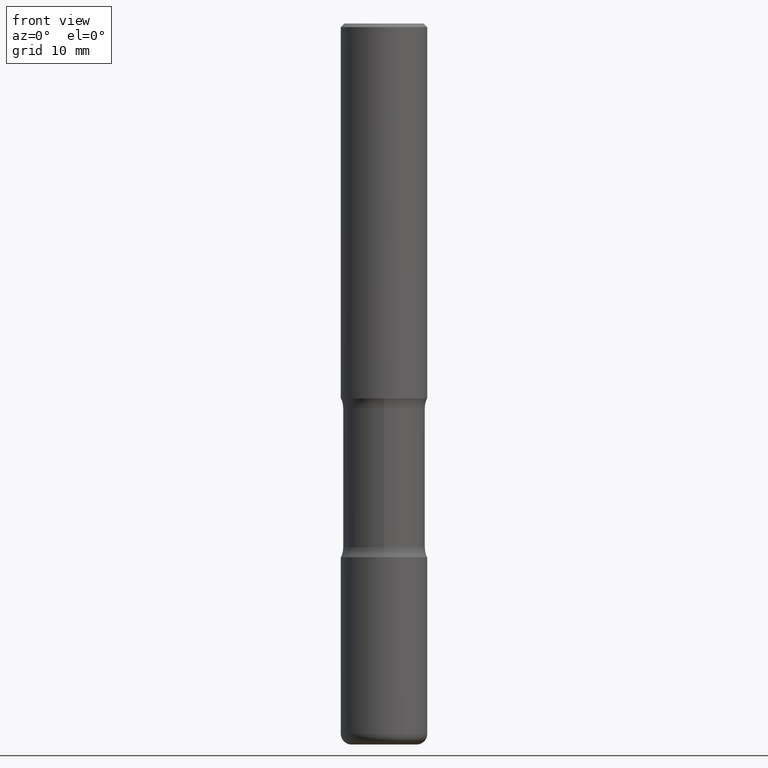
[diagram: clean part render]
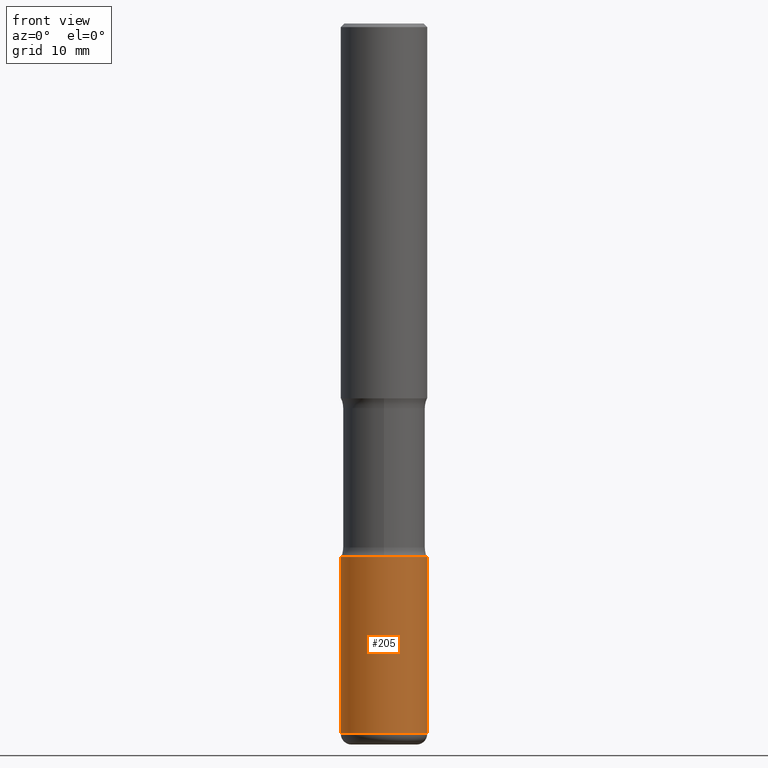
[diagram: same view with one face highlighted and labeled with its STEP entity id]
A machine part, front view. The second image highlights one B-rep face of the part: STEP entity #205.
In plain terms, the highlighted cylindrical surface (partial cylindrical patch) has radius 5.9995 mm, axis along (-0, 0, 1).
Its self-contained STEP definition (entity closure, byte-faithful):
#6 = CARTESIAN_POINT ( 'NONE',  ( 9.483283483505337853E-29, -1.353961548389983144E-14, -3.877899999999999014 ) ) ;
#40 = EDGE_CURVE ( 'NONE', #238, #203, #289, .T. ) ;
#51 = DIRECTION ( 'NONE',  ( -2.445468806185136597E-29, 3.491481338843145583E-15, 1.000000000000000000 ) ) ;
#60 = VECTOR ( 'NONE', #499, 39.37007874015748143 ) ;
#148 = AXIS2_PLACEMENT_3D ( 'NONE', #339, #550, #514 ) ;
#154 = VERTEX_POINT ( 'NONE', #295 ) ;
#162 = ORIENTED_EDGE ( 'NONE', *, *, #330, .T. ) ;
#168 = EDGE_CURVE ( 'NONE', #384, #203, #420, .T. ) ;
#178 = CYLINDRICAL_SURFACE ( 'NONE', #148, 0.2362000000000001598 ) ;
#188 = DIRECTION ( 'NONE',  ( 1.000000000000000000, -6.982962677686266711E-15, 0.000000000000000000 ) ) ;
#200 = CIRCLE ( 'NONE', #504, 0.2362000000000002153 ) ;
#203 = VERTEX_POINT ( 'NONE', #417 ) ;
#205 = ADVANCED_FACE ( 'NONE', ( #378 ), #178, .T. ) ;
#209 = DIRECTION ( 'NONE',  ( -2.445468806185136597E-29, 3.491481338843145583E-15, 1.000000000000000000 ) ) ;
#212 = AXIS2_PLACEMENT_3D ( 'NONE', #217, #209, #470 ) ;
#217 = CARTESIAN_POINT ( 'NONE',  ( 7.124628819939777829E-29, -1.017208173258562247E-14, -2.913400000000000212 ) ) ;
#221 = CARTESIAN_POINT ( 'NONE',  ( -0.2362000000000001598, 1.678301941865357775E-15, -1.161852468318209598E-29 ) ) ;
#238 = VERTEX_POINT ( 'NONE', #375 ) ;
#276 = VECTOR ( 'NONE', #385, 39.37007874015748143 ) ;
#289 = LINE ( 'NONE', #296, #60 ) ;
#295 = CARTESIAN_POINT ( 'NONE',  ( -0.2362000000000000766, -1.186131354203447347E-14, -3.877899999999999014 ) ) ;
#296 = CARTESIAN_POINT ( 'NONE',  ( 0.2362000000000001598, -1.649375784469497314E-15, 1.151752954443000929E-29 ) ) ;
#306 = EDGE_CURVE ( 'NONE', #154, #384, #388, .T. ) ;
#330 = EDGE_CURVE ( 'NONE', #154, #238, #200, .T. ) ;
#339 = CARTESIAN_POINT ( 'NONE',  ( 0.000000000000000000, 0.000000000000000000, 0.000000000000000000 ) ) ;
#347 = ORIENTED_EDGE ( 'NONE', *, *, #306, .F. ) ;
#353 = CARTESIAN_POINT ( 'NONE',  ( -0.2362000000000001321, -1.017754666637736977E-14, -2.913400000000000212 ) ) ;
#363 = EDGE_LOOP ( 'NONE', ( #347, #162, #398, #489 ) ) ;
#375 = CARTESIAN_POINT ( 'NONE',  ( 0.2362000000000000766, -1.518899126836932954E-14, -3.877899999999999014 ) ) ;
#378 = FACE_OUTER_BOUND ( 'NONE', #363, .T. ) ;
#384 = VERTEX_POINT ( 'NONE', #353 ) ;
#385 = DIRECTION ( 'NONE',  ( -2.445468806185136877E-29, 3.491481338843145188E-15, 1.000000000000000000 ) ) ;
#388 = LINE ( 'NONE', #221, #276 ) ;
#398 = ORIENTED_EDGE ( 'NONE', *, *, #40, .T. ) ;
#417 = CARTESIAN_POINT ( 'NONE',  ( 0.2362000000000001321, -1.182145751705511899E-14, -2.913400000000000212 ) ) ;
#420 = CIRCLE ( 'NONE', #212, 0.2362000000000001321 ) ;
#470 = DIRECTION ( 'NONE',  ( 1.000000000000000000, -6.982962677686269077E-15, 0.000000000000000000 ) ) ;
#489 = ORIENTED_EDGE ( 'NONE', *, *, #168, .F. ) ;
#499 = DIRECTION ( 'NONE',  ( -2.445468806185136877E-29, 3.491481338843145188E-15, 1.000000000000000000 ) ) ;
#504 = AXIS2_PLACEMENT_3D ( 'NONE', #6, #51, #188 ) ;
#514 = DIRECTION ( 'NONE',  ( 1.000000000000000000, -6.982962677686266711E-15, 4.876176775795936353E-29 ) ) ;
#550 = DIRECTION ( 'NONE',  ( -2.445468806185136597E-29, 3.491481338843145583E-15, 1.000000000000000000 ) ) ;